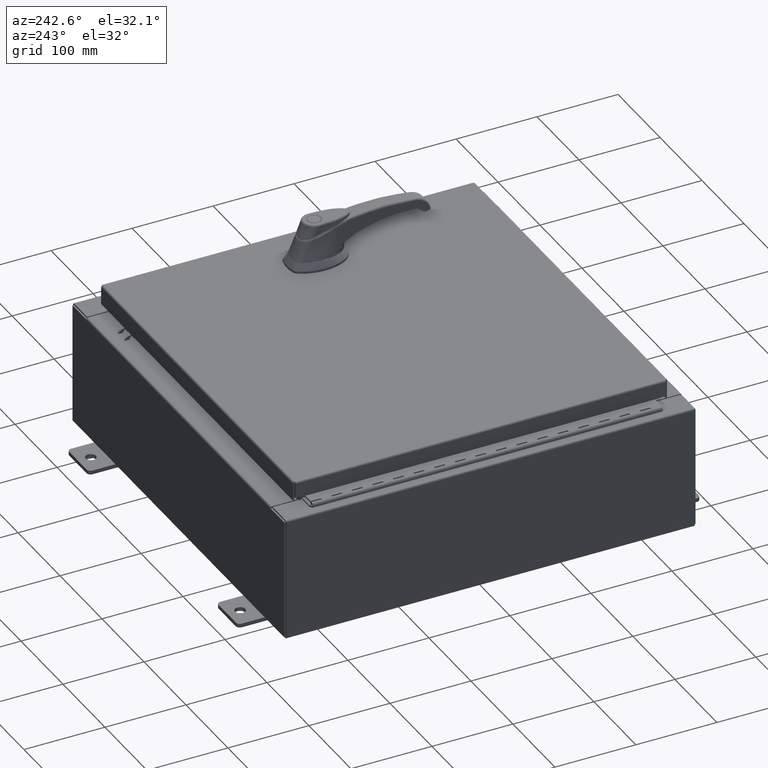
[diagram: clean part render]
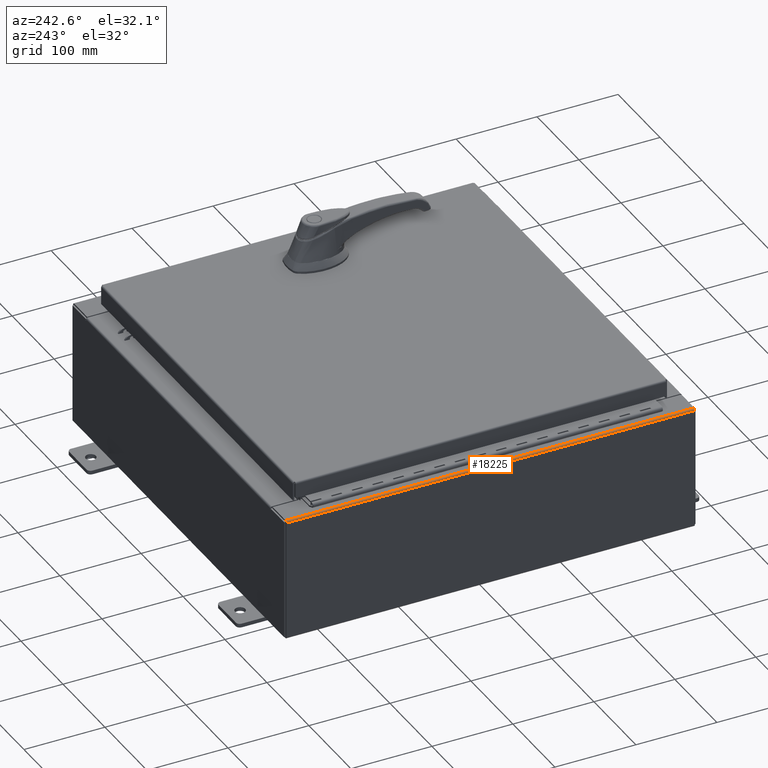
[diagram: same view with one face highlighted and labeled with its STEP entity id]
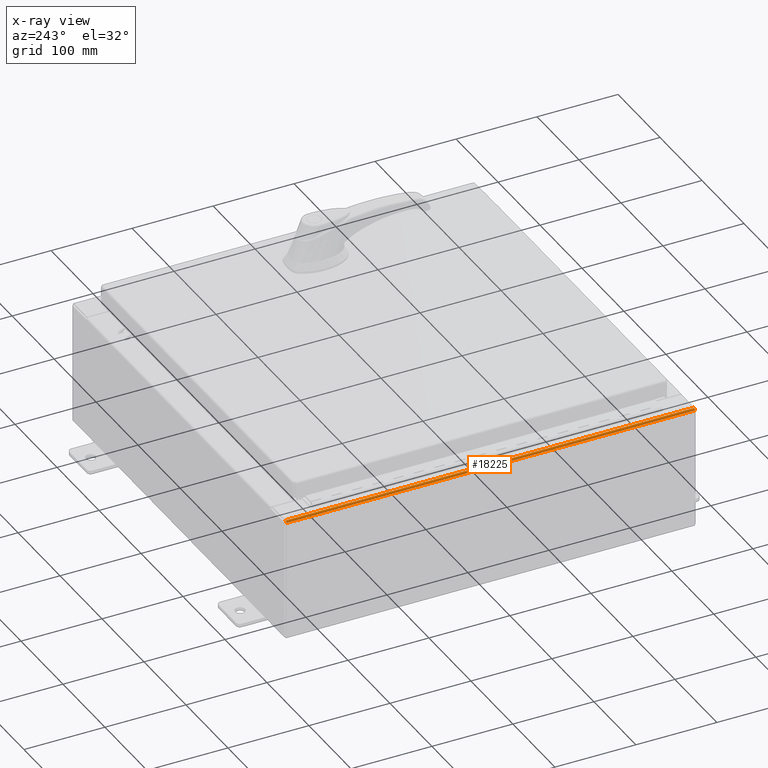
[diagram: x-ray of the same camera — body ghosted, the highlighted face saturated]
A machine part, auxiliary view. The second image highlights one B-rep face of the part: STEP entity #18225.
The next image is the same camera in x-ray: the body ghosted, the highlighted face saturated — about 0% of this face is hidden behind the body in this view.
In plain terms, the highlighted cylindrical surface (edge-blend (fillet) strip) has radius 2.2276 mm, axis along (-0, -1, -0).
Its self-contained STEP definition (entity closure, byte-faithful):
#4178 = CARTESIAN_POINT ( 'NONE',  ( -9.912300000000019700, -9.925299999999992900, 5.837599999999999200 ) ) ;
#6122 = AXIS2_PLACEMENT_3D ( 'NONE', #44354, #103345, #52829 ) ;
#7995 = DIRECTION ( 'NONE',  ( -0.0000000000000000000, 1.000000000000000000, -5.504816970095139000E-017 ) ) ;
#14627 = VERTEX_POINT ( 'NONE', #78286 ) ;
#15745 = EDGE_CURVE ( 'NONE', #35421, #14627, #109169, .T. ) ;
#17839 = CARTESIAN_POINT ( 'NONE',  ( -9.912300000000019700, 9.925300000000001800, 5.837599999999999200 ) ) ;
#18225 = ADVANCED_FACE ( 'NONE', ( #77234 ), #32321, .T. ) ;
#18599 = ORIENTED_EDGE ( 'NONE', *, *, #15745, .T. ) ;
#18664 = CIRCLE ( 'NONE', #6122, 0.08770000000000026400 ) ;
#20934 = CARTESIAN_POINT ( 'NONE',  ( -10.00000000000002000, -9.925299999999992900, 5.837599999999999200 ) ) ;
#24708 = EDGE_CURVE ( 'NONE', #35421, #106772, #18664, .T. ) ;
#25462 = EDGE_LOOP ( 'NONE', ( #90808, #28253, #18599, #57924 ) ) ;
#26295 = DIRECTION ( 'NONE',  ( 0.0000000000000000000, 0.0000000000000000000, -1.000000000000000000 ) ) ;
#28253 = ORIENTED_EDGE ( 'NONE', *, *, #24708, .F. ) ;
#30587 = CARTESIAN_POINT ( 'NONE',  ( -10.00000000000002000, 9.925300000000001800, 5.837599999999999200 ) ) ;
#32321 = CYLINDRICAL_SURFACE ( 'NONE', #55694, 0.08770000000000026400 ) ;
#35421 = VERTEX_POINT ( 'NONE', #97822 ) ;
#40435 = VERTEX_POINT ( 'NONE', #30587 ) ;
#43340 = AXIS2_PLACEMENT_3D ( 'NONE', #17839, #76829, #26295 ) ;
#44354 = CARTESIAN_POINT ( 'NONE',  ( -9.912300000000019700, -9.925299999999992900, 5.837599999999999200 ) ) ;
#52829 = DIRECTION ( 'NONE',  ( 0.0000000000000000000, 0.0000000000000000000, -1.000000000000000000 ) ) ;
#55694 = AXIS2_PLACEMENT_3D ( 'NONE', #4178, #79802, #63176 ) ;
#57924 = ORIENTED_EDGE ( 'NONE', *, *, #91691, .F. ) ;
#63176 = DIRECTION ( 'NONE',  ( 0.0000000000000000000, 0.0000000000000000000, 1.000000000000000000 ) ) ;
#66957 = VECTOR ( 'NONE', #7995, 39.37007874015748100 ) ;
#71323 = EDGE_CURVE ( 'NONE', #106772, #40435, #97596, .T. ) ;
#72321 = DIRECTION ( 'NONE',  ( 0.0000000000000000000, 1.000000000000000000, 0.0000000000000000000 ) ) ;
#72520 = VECTOR ( 'NONE', #72321, 39.37007874015748100 ) ;
#76829 = DIRECTION ( 'NONE',  ( 0.0000000000000000000, 1.000000000000000000, 0.0000000000000000000 ) ) ;
#77234 = FACE_OUTER_BOUND ( 'NONE', #25462, .T. ) ;
#78286 = CARTESIAN_POINT ( 'NONE',  ( -9.912300000000019700, 9.925300000000001800, 5.925299999999999100 ) ) ;
#79412 = CIRCLE ( 'NONE', #43340, 0.08770000000000026400 ) ;
#79802 = DIRECTION ( 'NONE',  ( -0.0000000000000000000, -1.000000000000000000, -0.0000000000000000000 ) ) ;
#89285 = CARTESIAN_POINT ( 'NONE',  ( -10.00000000000002000, -9.925299999999992900, 5.837599999999999200 ) ) ;
#90808 = ORIENTED_EDGE ( 'NONE', *, *, #71323, .F. ) ;
#91691 = EDGE_CURVE ( 'NONE', #40435, #14627, #79412, .T. ) ;
#92475 = CARTESIAN_POINT ( 'NONE',  ( -9.912300000000019700, 9.925300000000000000, 5.925299999999999100 ) ) ;
#97596 = LINE ( 'NONE', #89285, #72520 ) ;
#97822 = CARTESIAN_POINT ( 'NONE',  ( -9.912300000000019700, -9.925299999999992900, 5.925299999999999100 ) ) ;
#103345 = DIRECTION ( 'NONE',  ( -0.0000000000000000000, -1.000000000000000000, -0.0000000000000000000 ) ) ;
#106772 = VERTEX_POINT ( 'NONE', #20934 ) ;
#109169 = LINE ( 'NONE', #92475, #66957 ) ;